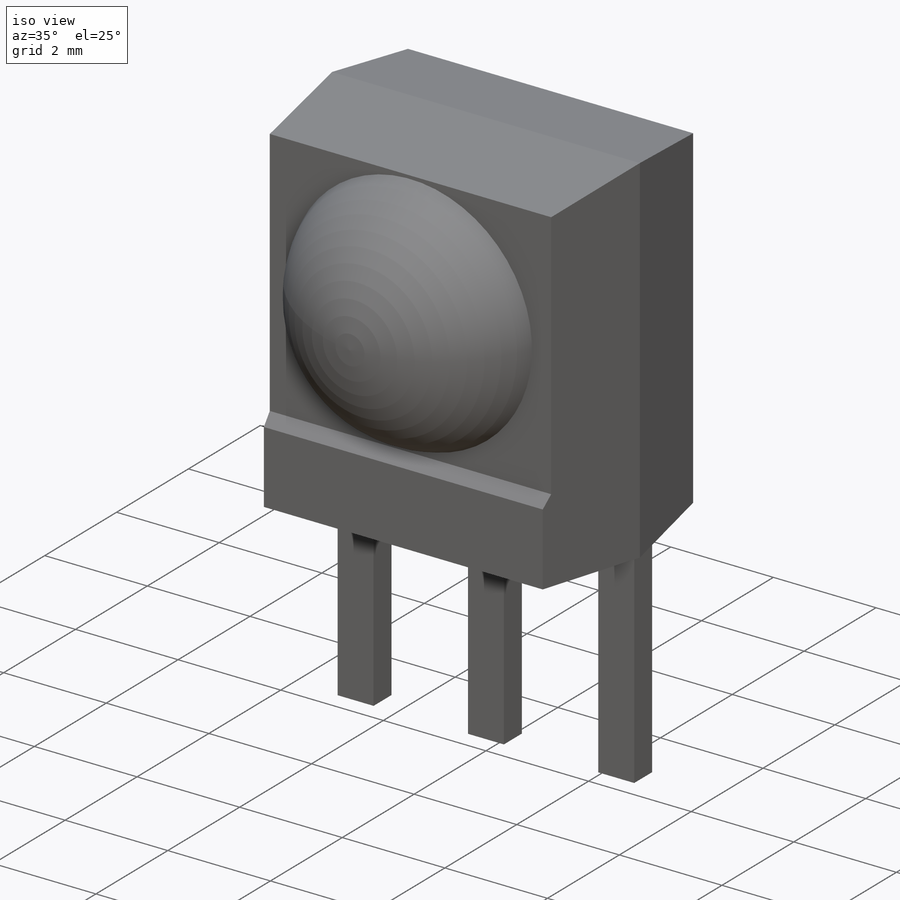
[diagram: iso view]
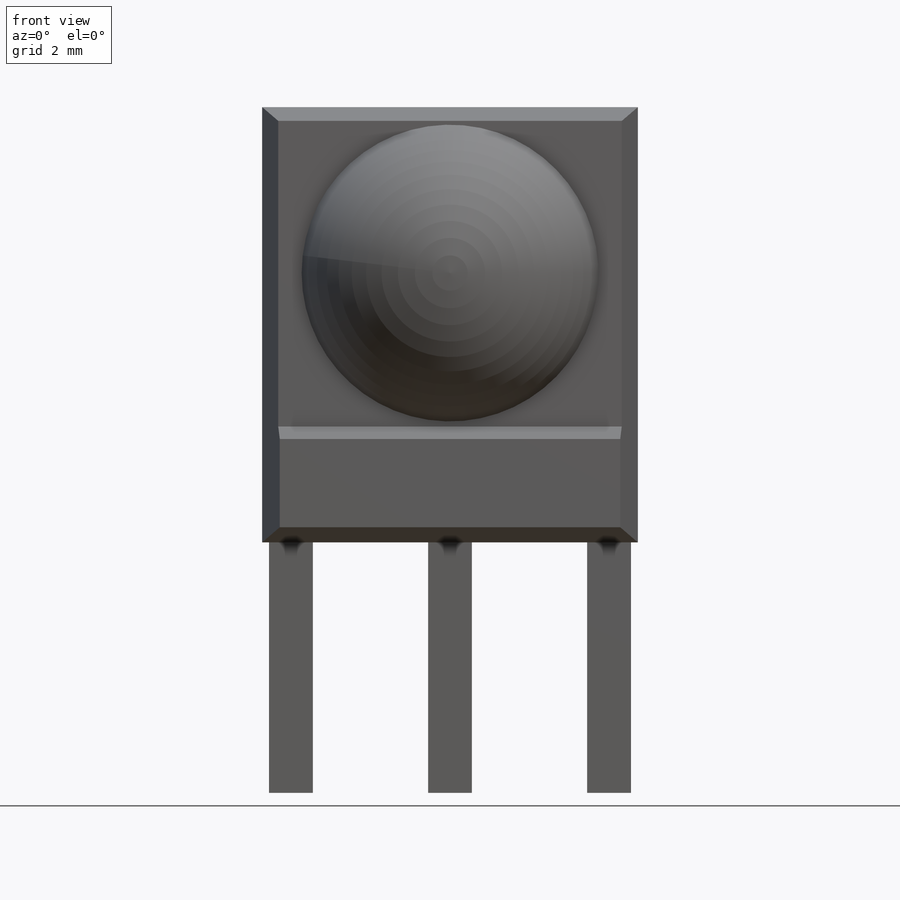
[diagram: front view]
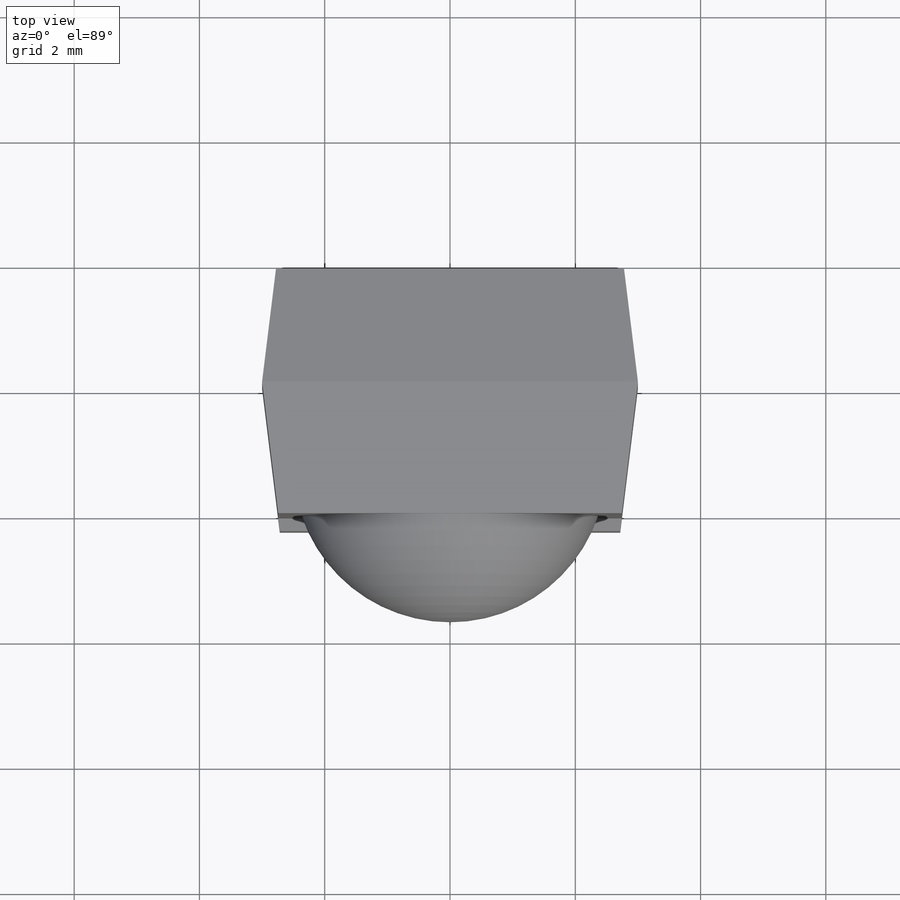
[diagram: top view]
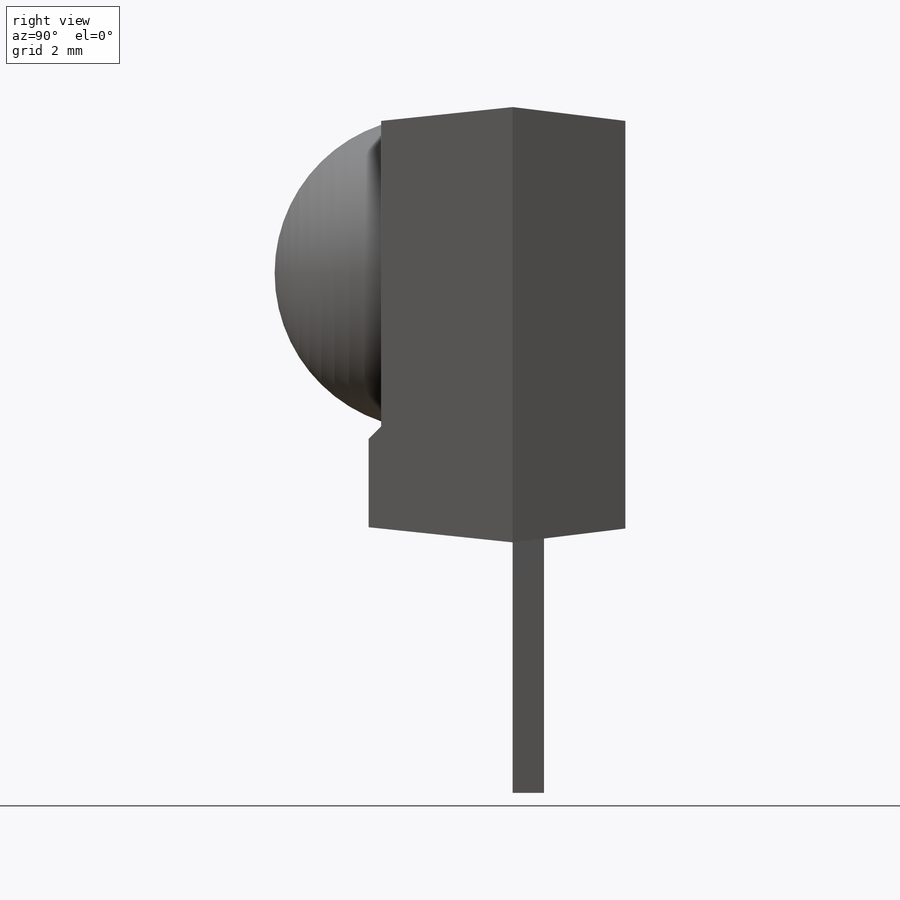
[diagram: right view]
SOLIDWORKS PART (.sldprt)
format: sldprt  version: not decoded by parser v0  size: 699,392 bytes
history: native  units: mm
features: plane x4, sketch x4, extrude x2, material x1, cut_extrude x1, revolve x1, mirror x1 (+8 scaffold rows collapsed)
feature tree (22):
  scaffold x8  (default folders/planes/origin — collapsed)
  material  "Matériau <non spécifié>"
  plane  "Plan de face"
  plane  "Plan de dessus"
  plane  "Plan de droite"
  sketch  "Esquisse1"  dims[c1.D1=3.9mm c1.D2=6.95mm c1.D3=1.8mm c1.D4=4.1mm c1.D5=5.3mm c1.D6=~0.203775mm c2.D6=45.0deg c2.D7=1.8mm c3.D7=7.0deg]
  extrude  "Boss.-Extru.1"  Depth=6mm
  sketch  "Esquisse2"  dims[c1.D1=1.8mm c2.D1=7.0deg c3.D1=1.8mm c4.D1=7.0deg c4.D2=2.3mm c5.D2=7.0deg]
  cut_extrude  "Enlèv. mat.-Extru.4"  [1 undecoded]
  plane  "Plan1"  Offset=4.3mm
  sketch  "Esquisse3"  dims[D1=2.4mm D2=5.6mm]
  revolve  "Révolution1"  Angle=360deg
  mirror  "Symétrie1"
  sketch  "Esquisse4"  dims[D1=0.7mm D2=0.5mm D3=2.54mm D4=2.54mm]
  extrude  "Boss.-Extru.2"  Depth=4mm
decode coverage: 7 of 9 modeling features carry decoded parameters
note: ~ marks probable driven/reference dimensions
note: 1 parameter value undecoded
note: suppression state not decoded; provenance and decode notes live in map.json
